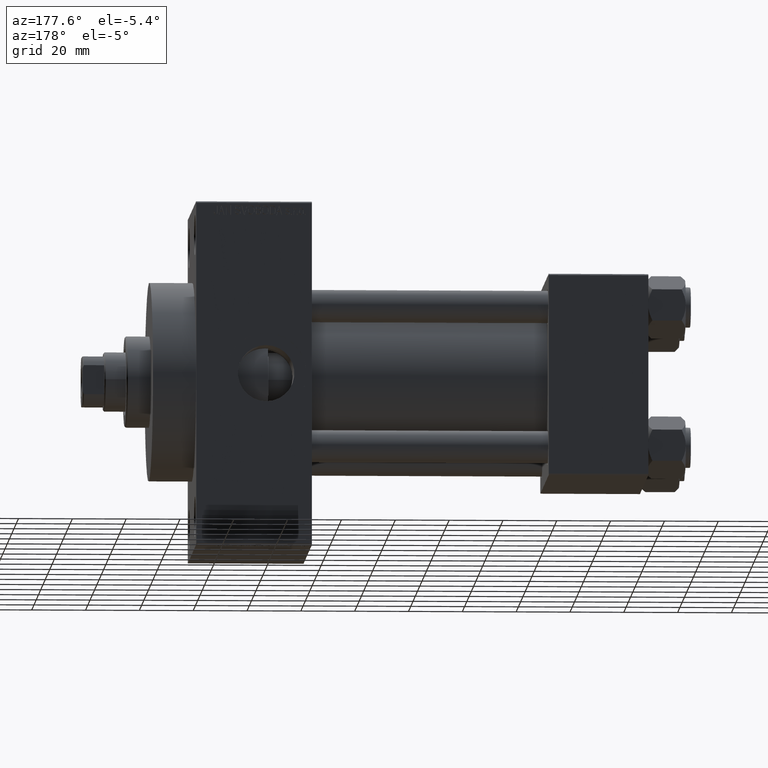
[diagram: clean part render]
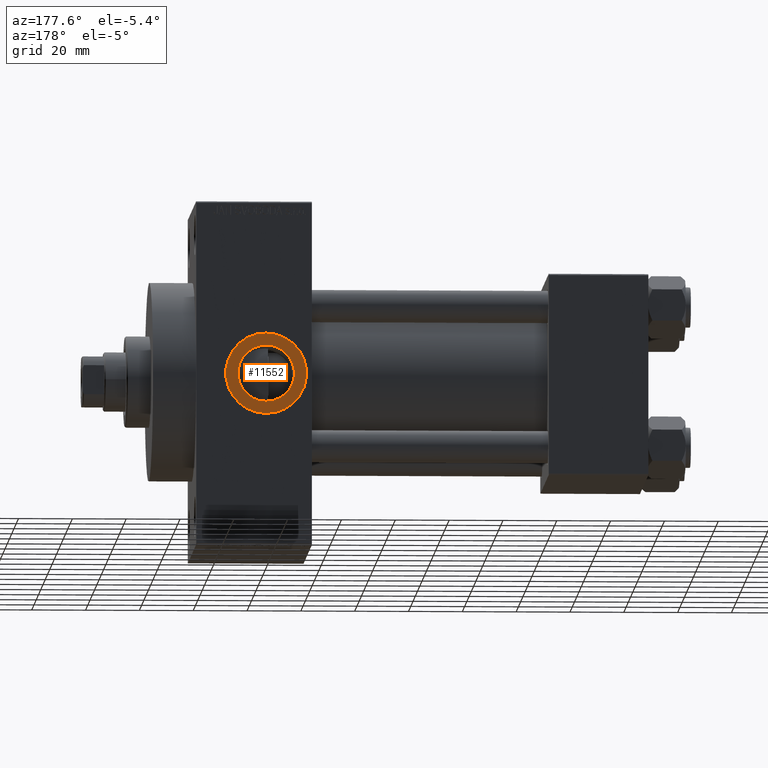
[diagram: same view with one face highlighted and labeled with its STEP entity id]
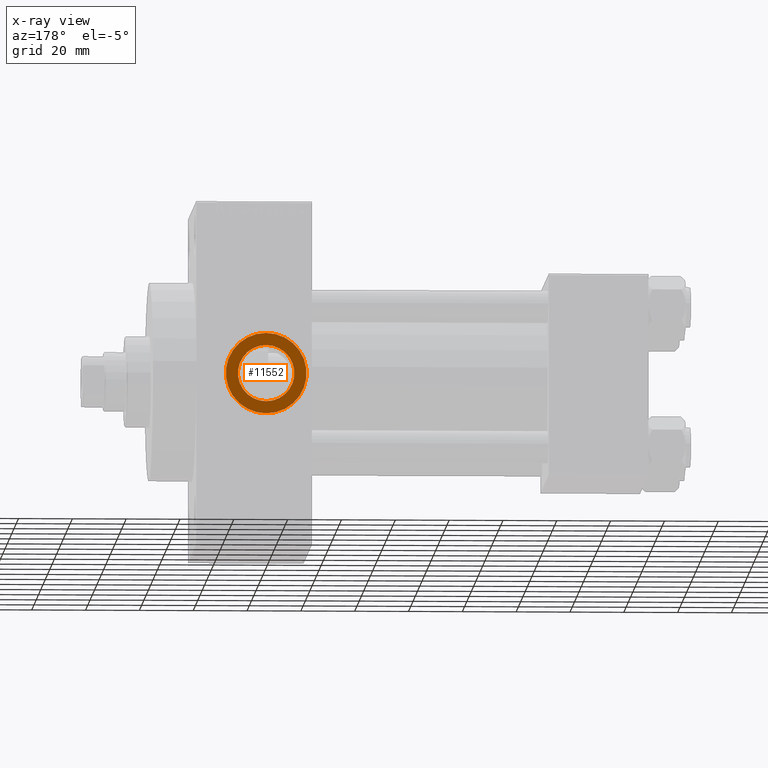
[diagram: x-ray of the same camera — body ghosted, the highlighted face saturated]
A machine part, auxiliary view. The second image highlights one B-rep face of the part: STEP entity #11552.
The next image is the same camera in x-ray: the body ghosted, the highlighted face saturated — about 0% of this face is hidden behind the body in this view.
In plain terms, the highlighted planar face has unit normal (0, 1, 0).
Its self-contained STEP definition (entity closure, byte-faithful):
#308 = CIRCLE ( 'NONE', #8172, 10.47999999999998622 ) ;
#2347 = CARTESIAN_POINT ( 'NONE',  ( 142.0000000000000284, 37.29999999999999005, -2.032879073410320814E-15 ) ) ;
#2976 = EDGE_CURVE ( 'NONE', #4177, #4141, #308, .T. ) ;
#3964 = AXIS2_PLACEMENT_3D ( 'NONE', #42137, #7724, #34035 ) ;
#4141 = VERTEX_POINT ( 'NONE', #47317 ) ;
#4177 = VERTEX_POINT ( 'NONE', #41632 ) ;
#6061 = AXIS2_PLACEMENT_3D ( 'NONE', #15630, #48191, #43996 ) ;
#6322 = CIRCLE ( 'NONE', #3964, 15.00000000000002487 ) ;
#7024 = DIRECTION ( 'NONE',  ( 0.000000000000000000, 0.000000000000000000, 1.000000000000000000 ) ) ;
#7724 = DIRECTION ( 'NONE',  ( 0.000000000000000000, 1.000000000000000000, 0.000000000000000000 ) ) ;
#8172 = AXIS2_PLACEMENT_3D ( 'NONE', #2347, #13919, #7024 ) ;
#8264 = DIRECTION ( 'NONE',  ( 0.000000000000000000, 1.000000000000000000, 0.000000000000000000 ) ) ;
#11552 = ADVANCED_FACE ( 'NONE', ( #23750, #19805 ), #26728, .T. ) ;
#12980 = CIRCLE ( 'NONE', #37350, 15.00000000000002487 ) ;
#13919 = DIRECTION ( 'NONE',  ( 0.000000000000000000, 1.000000000000000000, 0.000000000000000000 ) ) ;
#14604 = AXIS2_PLACEMENT_3D ( 'NONE', #15877, #8264, #15413 ) ;
#14787 = EDGE_CURVE ( 'NONE', #4141, #4177, #20968, .T. ) ;
#15413 = DIRECTION ( 'NONE',  ( 0.000000000000000000, -0.000000000000000000, 1.000000000000000000 ) ) ;
#15630 = CARTESIAN_POINT ( 'NONE',  ( 142.0000000000000284, 37.29999999999999005, -2.032879073410320814E-15 ) ) ;
#15877 = CARTESIAN_POINT ( 'NONE',  ( 142.0000000000000284, 37.29999999999999716, -2.032879073410320814E-15 ) ) ;
#19364 = VERTEX_POINT ( 'NONE', #48188 ) ;
#19805 = FACE_OUTER_BOUND ( 'NONE', #40786, .T. ) ;
#20968 = CIRCLE ( 'NONE', #6061, 10.47999999999998622 ) ;
#21249 = ORIENTED_EDGE ( 'NONE', *, *, #2976, .F. ) ;
#23750 = FACE_BOUND ( 'NONE', #30154, .T. ) ;
#26728 = PLANE ( 'NONE',  #14604 ) ;
#29488 = EDGE_CURVE ( 'NONE', #19364, #37478, #6322, .T. ) ;
#30154 = EDGE_LOOP ( 'NONE', ( #38618, #21249 ) ) ;
#32172 = CARTESIAN_POINT ( 'NONE',  ( 142.0000000000000284, 37.29999999999999716, -2.032879073410320814E-15 ) ) ;
#34035 = DIRECTION ( 'NONE',  ( 0.000000000000000000, 0.000000000000000000, 1.000000000000000000 ) ) ;
#35766 = ORIENTED_EDGE ( 'NONE', *, *, #43696, .T. ) ;
#35862 = DIRECTION ( 'NONE',  ( 0.000000000000000000, 0.000000000000000000, 1.000000000000000000 ) ) ;
#37350 = AXIS2_PLACEMENT_3D ( 'NONE', #32172, #47179, #35862 ) ;
#37478 = VERTEX_POINT ( 'NONE', #42152 ) ;
#38618 = ORIENTED_EDGE ( 'NONE', *, *, #14787, .F. ) ;
#40786 = EDGE_LOOP ( 'NONE', ( #42862, #35766 ) ) ;
#41632 = CARTESIAN_POINT ( 'NONE',  ( 142.0000000000000284, 37.29999999999999005, -10.47999999999998799 ) ) ;
#42137 = CARTESIAN_POINT ( 'NONE',  ( 142.0000000000000284, 37.29999999999999716, -2.032879073410320814E-15 ) ) ;
#42152 = CARTESIAN_POINT ( 'NONE',  ( 142.0000000000000284, 37.29999999999999716, -15.00000000000002665 ) ) ;
#42862 = ORIENTED_EDGE ( 'NONE', *, *, #29488, .T. ) ;
#43696 = EDGE_CURVE ( 'NONE', #37478, #19364, #12980, .T. ) ;
#43996 = DIRECTION ( 'NONE',  ( 0.000000000000000000, 0.000000000000000000, 1.000000000000000000 ) ) ;
#47179 = DIRECTION ( 'NONE',  ( 0.000000000000000000, 1.000000000000000000, 0.000000000000000000 ) ) ;
#47317 = CARTESIAN_POINT ( 'NONE',  ( 142.0000000000000284, 37.29999999999999005, 10.47999999999998444 ) ) ;
#48188 = CARTESIAN_POINT ( 'NONE',  ( 142.0000000000000284, 37.29999999999999716, 15.00000000000002309 ) ) ;
#48191 = DIRECTION ( 'NONE',  ( 0.000000000000000000, 1.000000000000000000, 0.000000000000000000 ) ) ;